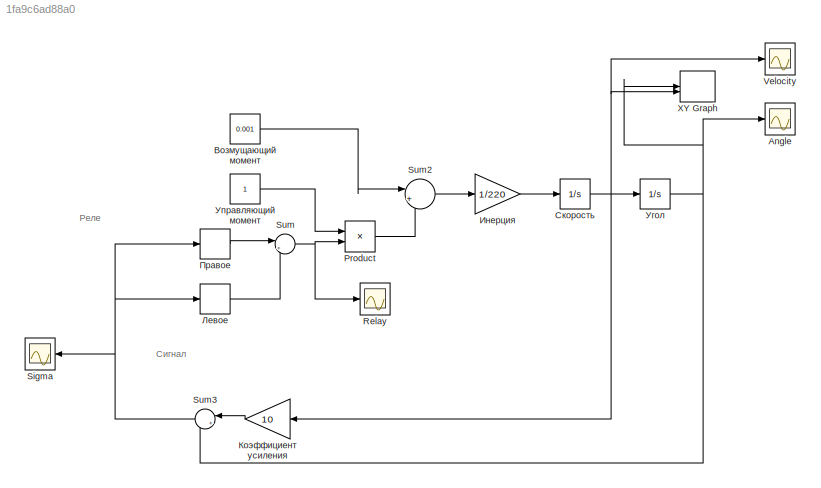
MODEL slx_1fa9c6ad88a0
KIND model
CONFIG AbsTol = auto
CONFIG EnableMultiTasking = off
CONFIG FixedStep = auto
CONFIG MaxStep = auto
CONFIG MinStep = auto
CONFIG RelTol = 1e-3
CONFIG SampleTimeConstraint = Unconstrained
CONFIG SolverName = VariableStepAuto
CONFIG StartTime = 0.0
CONFIG StopTime = 1000
BLOCK [Scope] Angle
  Floating = off
  NumInputPorts = 1
  ScopeSpecificationString = Simulink.scopes.TimeScopeBlockCfg('CurrentConfiguration', extmgr.ConfigurationSet(extmgr.Configuration('Core','General UI',true),extmgr.Configuration('Core','Source UI',true),extmgr.Configuration('Sources','WiredSimulink',true),extmgr.Configuration('Visuals','Time Domain',true),extmgr.Configuration('Tools','Plot Navigation',true),extmgr.Configuration('Tools','Measurements',true)),'Version','2024a'...<+1ch>
BLOCK [Product] Product
BLOCK [Scope] Relay
  Floating = off
  NumInputPorts = 1
  ScopeSpecificationString = Simulink.scopes.TimeScopeBlockCfg('CurrentConfiguration', extmgr.ConfigurationSet(extmgr.Configuration('Core','General UI',true),extmgr.Configuration('Core','Source UI',true),extmgr.Configuration('Sources','WiredSimulink',true,'DataLoggingVariableName','ScopeData2'),extmgr.Configuration('Visuals','Time Domain',true,'SerializedDisplays',{struct('MinYLimReal','-0.125','MaxYLimReal','1.125','YLabelRe...<+1468ch>
BLOCK [Scope] Sigma
  Floating = off
  NameLocation = top
  NumInputPorts = 1
  ScopeSpecificationString = Simulink.scopes.TimeScopeBlockCfg('CurrentConfiguration', extmgr.ConfigurationSet(extmgr.Configuration('Core','General UI',true),extmgr.Configuration('Core','Source UI',true),extmgr.Configuration('Sources','WiredSimulink',true,'DataLoggingVariableName','ScopeData3'),extmgr.Configuration('Visuals','Time Domain',true,'SerializedDisplays',{struct('MinYLimReal','-0.10755','MaxYLimReal','0.12306','YLab...<+1452ch>
BLOCK [Sum] Sum
  Inputs = |++
BLOCK [Sum] Sum2
  Inputs = |+-
BLOCK [Sum] Sum3
  Inputs = |++
  NameLocation = top
BLOCK [Scope] Velocity
  Floating = off
  NumInputPorts = 1
  ScopeSpecificationString = Simulink.scopes.TimeScopeBlockCfg('CurrentConfiguration', extmgr.ConfigurationSet(extmgr.Configuration('Core','General UI',true),extmgr.Configuration('Core','Source UI',true),extmgr.Configuration('Sources','WiredSimulink',true,'DataLoggingVariableName','ScopeData1'),extmgr.Configuration('Visuals','Time Domain',true,'SerializedDisplays',{struct('MinYLimReal','-0.00159','MaxYLimReal','0.00166','YLab...<+1456ch>
BLOCK [Record] XY Graph
  CompatibilityTag = XY
  FileSettingsInternal = {"entries":[{"content":{"excelSettings":{"content":{},"type":"Streamout.ExcelSettings"}},"type":"Streamout.FileSettingStorage","uuid":""}],"packageUris":["http:\/\/schema.mathworks.com\/mf0\/streamout_blocks\/R2020a"],"version":"1.0"}
  Layout = [1 1]
  SignalsInternal = {"entries":[{"content":{"signals":[{"content":{"blockPath":[],"dimensions":[1],"domain":"","lineColor":"#a2142f","plots":[ 1 ],"port":1,"sid":[""],"signalID":1,"signalName":"Угол"},"type":"RecordBlkView.Signal","uuid":""},{"content":{"blockPath":[],"dimensions":[1],"domain":"","lineColor":"#139fff","plots":[ 1 ],"port":2,"sid":[""],"signalID":2,"signalName":"Скорость"},"type":"RecordBlkView.Signal...<+158ch>
  VisualizationBindings = {"xyplotplugin":{"info":[{"series":[{"bindingParametersList":[{"parameter":"X-Axis","signalID":1,"signalName":"Угол"},{"parameter":"Y-Axis","signalID":2,"signalName":"Скорость"},{"parameter":"X-Axis","signalID":1,"signalName":"Угол"},{"parameter":"Y-Axis","signalID":2,"signalName":"Скорость"},{"parameter":"X-Axis","signalID":1,"signalName":"Угол"},{"parameter":"Y-Axis","signalID":2,"signalName":"С...<+275ch>
BLOCK [Constant] Возмущающий момент
  Value = 0.001
BLOCK [Gain] Инерция
  Gain = 1/220
BLOCK [Gain] Коэффициент усиления
  Gain = 10
  NameLocation = top
BLOCK [Relay] Левое
  OffOutputValue = -1
  OffSwitchValue = -1
  OnOutputValue = 0
  OnSwitchValue = -0.08
BLOCK [Relay] Правое
  OffSwitchValue = 0.08
  OnSwitchValue = 0.1
BLOCK [Integrator] Скорость
  InitialCondition = 0.001
BLOCK [Integrator] Угол
  InitialCondition = 0.001
BLOCK [Constant] Управляющий момент
ANNOTATION (root): Реле
ANNOTATION (root): Сигнал
LINE Product:1 -> Sum2:2
LINE Sum2:1 -> Инерция:1
NET Sum3:1 -> Sigma:1, Левое:1, Правое:1
NET Sum:1 -> Product:2, Relay:1
LINE Возмущающий момент:1 -> Sum2:1
LINE Инерция:1 -> Скорость:1
LINE Коэффициент усиления:1 -> Sum3:1
LINE Левое:1 -> Sum:2
LINE Правое:1 -> Sum:1
NET Скорость:1 -> Velocity:1, XY Graph:2, Коэффициент усиления:1, Угол:1
NET Угол:1 -> Angle:1, Sum3:2, XY Graph:1
LINE Управляющий момент:1 -> Product:1
note: NET lines group one-source signal fan-out (src -> all destinations, sorted); 1:1 wires keep LINE
